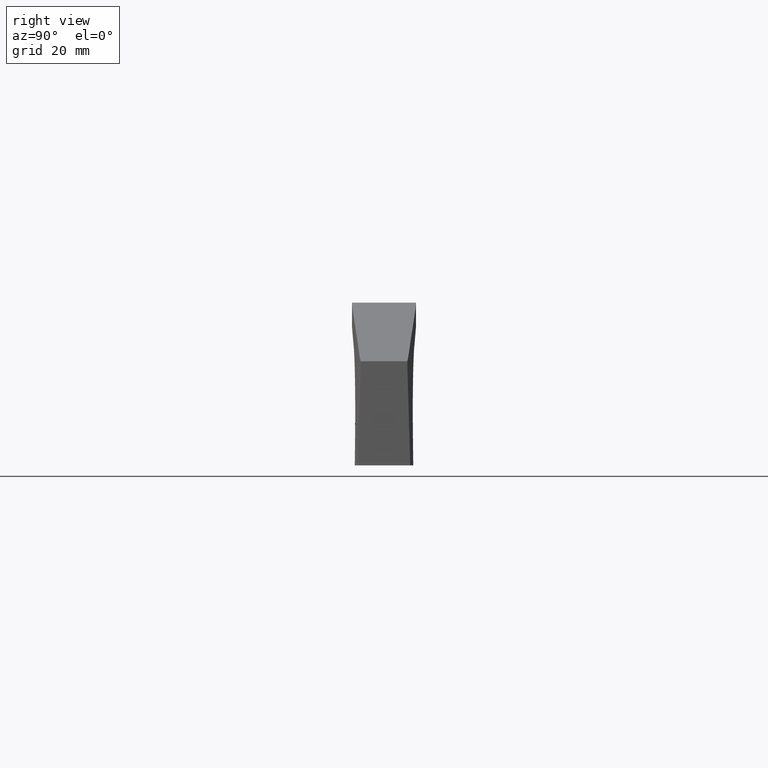
[diagram: clean part render]
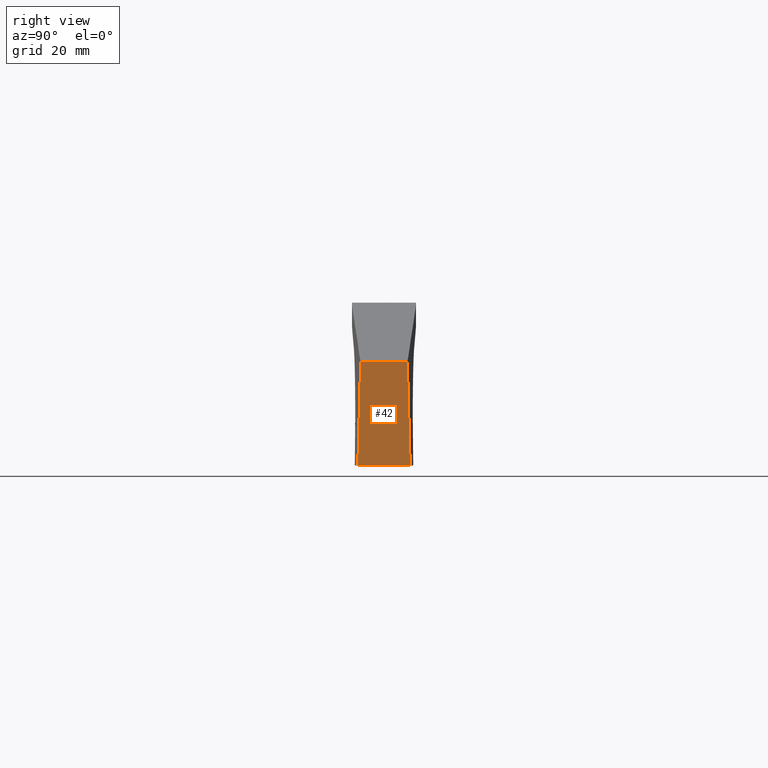
[diagram: same view with one face highlighted and labeled with its STEP entity id]
A machine part, right view. The second image highlights one B-rep face of the part: STEP entity #42.
In plain terms, the highlighted planar face has unit normal (-0.9965, 0, -0.0836).
Its self-contained STEP definition (entity closure, byte-faithful):
#42=ADVANCED_FACE('',(#81),#80,.F.);
#80=PLANE('',#255);
#81=FACE_OUTER_BOUND('',#256,.T.);
#252=CARTESIAN_POINT('',(6.11502988880E+01,-5.40000000000E+00,-1.78818674312E+00));
#253=DIRECTION('',(-9.96500259861E-01,0.00000000000E+00,-8.35896650146E-02));
#254=DIRECTION('',(-8.35896650146E-02,0.00000000000E+00,9.96500259861E-01));
#255=AXIS2_PLACEMENT_3D('',#252,#253,#254);
#256=EDGE_LOOP('',(#1209,#1210,#1211,#1212));
#1209=ORIENTED_EDGE('',*,*,#1301,.F.);
#1210=ORIENTED_EDGE('',*,*,#1302,.T.);
#1211=ORIENTED_EDGE('',*,*,#1296,.T.);
#1212=ORIENTED_EDGE('',*,*,#1303,.T.);
#1296=EDGE_CURVE('',#1397,#1390,#1398,.T.);
#1301=EDGE_CURVE('',#1431,#1432,#1433,.T.);
#1302=EDGE_CURVE('',#1431,#1397,#1439,.T.);
#1303=EDGE_CURVE('',#1390,#1432,#1445,.T.);
#1390=VERTEX_POINT('',#1683);
#1397=VERTEX_POINT('',#1689);
#1398=LINE('',#1690,#1691);
#1431=VERTEX_POINT('',#1713);
#1432=VERTEX_POINT('',#1714);
#1433=LINE('',#1715,#1716);
#1439=LINE('',#1718,#1719);
#1445=LINE('',#1721,#1722);
#1683=CARTESIAN_POINT('',(6.10003000000E+01,4.50000000000E+00,-4.44089200000E-13));
#1689=CARTESIAN_POINT('',(6.10003000000E+01,-4.50000000000E+00,-1.55431200000E-12));
#1690=CARTESIAN_POINT('',(6.10003000000E+01,-4.50000000000E+00,-1.55431200000E-12));
#1691=VECTOR('',#1692,9.00000000000E+00);
#1692=DIRECTION('',(1.11318361936E-13,1.00000000000E+00,1.23358088889E-13));
#1713=CARTESIAN_POINT('',(5.95003111203E+01,-4.00000370677E+00,1.78818674312E+01));
#1714=CARTESIAN_POINT('',(5.95003111203E+01,4.00000370677E+00,1.78818674312E+01));
#1715=CARTESIAN_POINT('',(5.95003111203E+01,-4.00000370677E+00,1.78818674312E+01));
#1716=VECTOR('',#1717,8.00000741353E+00);
#1717=DIRECTION('',(0.00000000000E+00,1.00000000000E+00,-6.21724317643E-15));
#1718=CARTESIAN_POINT('',(5.95003111203E+01,-4.00000370677E+00,1.78818674312E+01));
#1719=VECTOR('',#1720,1.79516335123E+01);
#1720=DIRECTION('',(8.35572360963E-02,-2.78524120321E-02,-9.96113663916E-01));
#1721=CARTESIAN_POINT('',(6.10003000000E+01,4.50000000000E+00,-4.44089200000E-13));
#1722=VECTOR('',#1723,1.79516335123E+01);
#1723=DIRECTION('',(-8.35572360964E-02,-2.78524120321E-02,9.96113663916E-01));